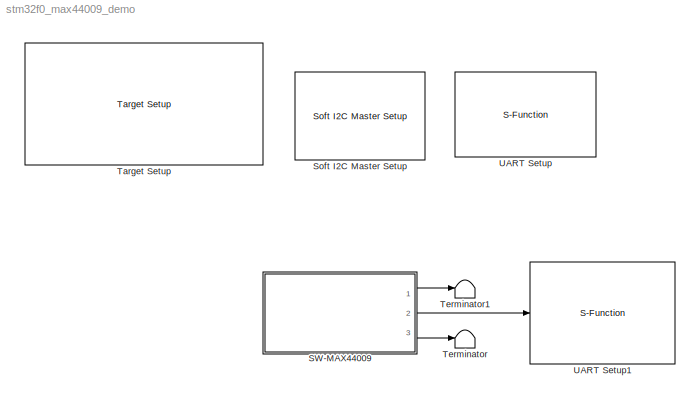
MODEL stm32f0_max44009_demo
KIND model
CONFIG PreLoadFcn = waijung.modelPreload; % Required for working with Waijung Blockset. Do not remove.
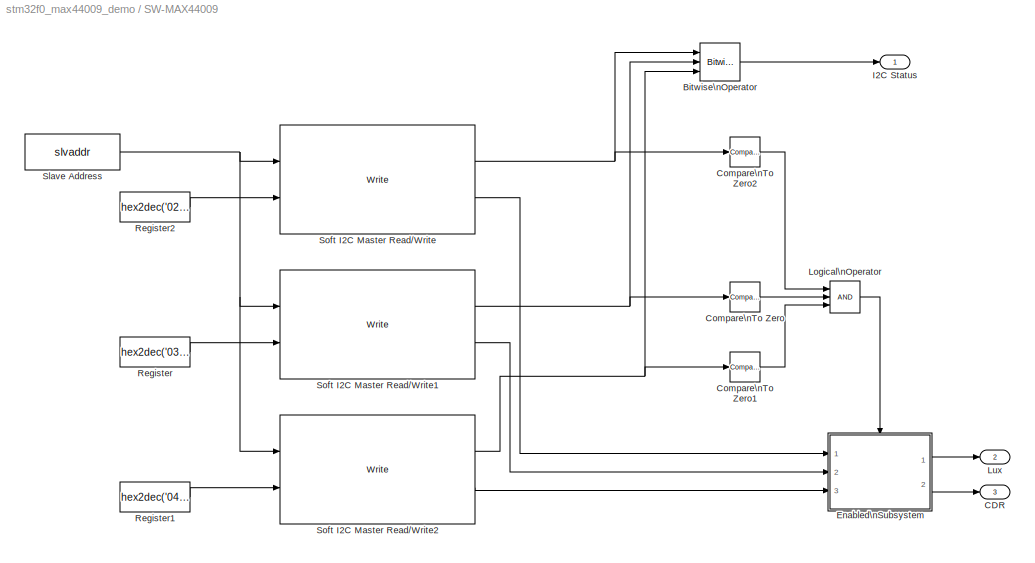
BLOCK [SubSystem] SW-MAX44009
  FunctionWithSeparateData = off
  MaskCallbackString = waijung_soft_i2c_sensors_callback('module');||||
  MaskDescription = aMG Sense - Light\n\nI2C Status:\n 0 - Success\n 1 - NAK\n 2 - Timeout\n 3 - Combined error, NAK+Timeout\n\nNote: Require I2C Setup block for the selected I2C module.
  MaskDisplay = text(0.5, 0.5, 'Soft-I2C\\naMG Sense - Light\\nMAX44009','ver','middle','hor','center');port_label('output', 1,'I2C Status');port_label('output', 2,'Lux');port_label('output', 3,'CDR');
  MaskEnableString = on,on,on,on,on
  MaskHideContents = off
  MaskIconFrame = on
  MaskIconOpaque = on
  MaskIconRotate = none
  MaskIconUnits = normalized
  MaskInitialization = waijung_soft_i2c_sensors_callback('init');
  MaskPortRotate = default
  MaskPromptString = I2C Module|I2C Slave Address|Output label|Sensor name|Sample time (sec)
  MaskSelfModifiable = on
  MaskStyleString = popup(1|2|3),edit,edit,edit,edit
  MaskTabNameString = ,,,,
  MaskToolTipString = on,on,on,on,on
  MaskTunableValueString = off,on,off,off,on
  MaskType = waijung_soft_i2c_sensors
  MaskValueString = 1|hex2dec('94')|{'I2C Status','Lux','CDR'}|Soft-I2C\\naMG Sense - Light\\nMAX44009|1
  MaskVarAliasString = ,,,,
  MaskVariables = module=&1;slvaddr=@2;outputlabel=&3;sensorname=&4;sampletime=@5;
  MaskVisibilityString = on,on,off,off,on
  MinAlgLoopOccurrences = off
  Opaque = off
  Ports = [0, 3]
  PropExecContextOutsideSubsystem = off
  RTWSystemCode = Auto
  RequestExecContextInheritance = off
BLOCK [Reference] SW-MAX44009/Bitwise\nOperator  REF=simulink/Logic and Bit\nOperations/Bitwise\nOperator
  BitMask = bin2dec('11011001')
  BitMaskRealWorld = Stored Integer
  NumInputPorts = 3
  Ports = [3, 1]
  SourceBlock = simulink/Logic and Bit\nOperations/Bitwise\nOperator
  SourceType = Bitwise Operator
  UseBitMask = off
  logicop = OR
BLOCK [Outport] SW-MAX44009/CDR
  IconDisplay = Port number
  OutDataType = fixdt(1, 16)
  OutScaling = 2^0
  Port = 3
BLOCK [Reference] SW-MAX44009/Compare\nTo Zero  REF=simulink/Logic and Bit\nOperations/Compare\nTo Zero
  FunctionWithSeparateData = off
  LogicOutDataTypeMode = uint8
  Ports = [1, 1]
  RTWMemSecDataConstants = Inherit from model
  RTWMemSecDataInternal = Inherit from model
  RTWMemSecDataParameters = Inherit from model
  RTWMemSecFuncExecute = Inherit from model
  RTWMemSecFuncInitTerm = Inherit from model
  ShowPortLabels = FromPortIcon
  SourceBlock = simulink/Logic and Bit\nOperations/Compare\nTo Zero
  SourceType = Compare To Zero
  SystemSampleTime = -1
  ZeroCross = off
  relop = ==
BLOCK [Reference] SW-MAX44009/Compare\nTo Zero1  REF=simulink/Logic and Bit\nOperations/Compare\nTo Zero
  FunctionWithSeparateData = off
  LogicOutDataTypeMode = uint8
  Ports = [1, 1]
  RTWMemSecDataConstants = Inherit from model
  RTWMemSecDataInternal = Inherit from model
  RTWMemSecDataParameters = Inherit from model
  RTWMemSecFuncExecute = Inherit from model
  RTWMemSecFuncInitTerm = Inherit from model
  ShowPortLabels = FromPortIcon
  SourceBlock = simulink/Logic and Bit\nOperations/Compare\nTo Zero
  SourceType = Compare To Zero
  SystemSampleTime = -1
  ZeroCross = off
  relop = ==
BLOCK [Reference] SW-MAX44009/Compare\nTo Zero2  REF=simulink/Logic and Bit\nOperations/Compare\nTo Zero
  FunctionWithSeparateData = off
  LogicOutDataTypeMode = uint8
  Ports = [1, 1]
  RTWMemSecDataConstants = Inherit from model
  RTWMemSecDataInternal = Inherit from model
  RTWMemSecDataParameters = Inherit from model
  RTWMemSecFuncExecute = Inherit from model
  RTWMemSecFuncInitTerm = Inherit from model
  ShowPortLabels = FromPortIcon
  SourceBlock = simulink/Logic and Bit\nOperations/Compare\nTo Zero
  SourceType = Compare To Zero
  SystemSampleTime = -1
  ZeroCross = off
  relop = ==
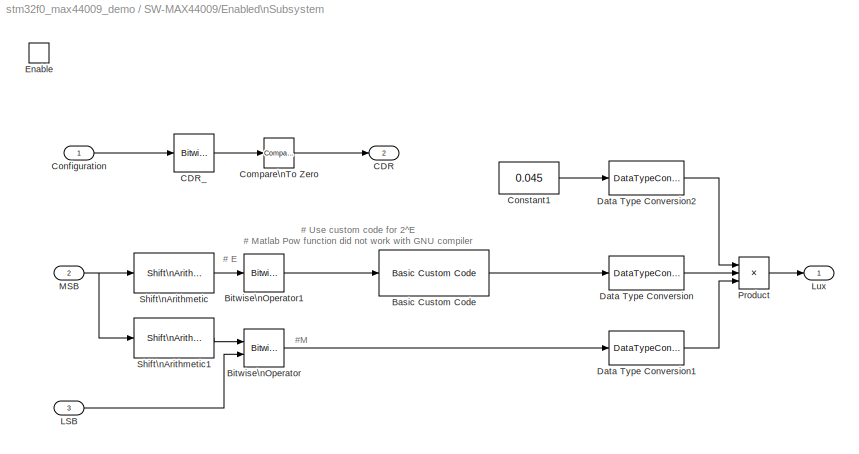
BLOCK [SubSystem] SW-MAX44009/Enabled\nSubsystem
  FunctionWithSeparateData = off
  MaskHideContents = off
  MinAlgLoopOccurrences = off
  Opaque = off
  Ports = [3, 2, 1]
  PropExecContextOutsideSubsystem = off
  RTWSystemCode = Auto
  RequestExecContextInheritance = off
  TreatAsAtomicUnit = on
BLOCK [Reference] SW-MAX44009/Enabled\nSubsystem/Basic Custom Code  REF=waijung_customcode/Basic Custom Code
  Ports = [1, 1]
  SourceBlock = waijung_customcode/Basic Custom Code
  SourceType = waijung_basic_customcode
  blockid = SWMAX44009EnabledSubsystemBasicCustomCode
  cinputportlabel = E
  cinputportlabelstr = [\"E\"]
  coutputportlabel = 2^E
  coutputportlabelstr = [\"2^E\"]
  enablecustomportlabel = on
  incfiles = {}
  incfilestrarray = []
  incpath = {}
  inputportcount = 1
  inputportdiminfo = [1  1  1  3]
  inputporttype = uint8
  inputporttypeid = [3]
  outputfuncallstr = {uint32_T result = 1; uint8_T i; for (i=0; i<in1; i++) { result *= 2; } *out1 = result;}
  outputportcount = 1
  outputportdiminfo = [1  1  1  7]
  outputporttype = uint32
  outputporttypeid = [7]
  sampletime = inf
  sampletimestr = 1
  srcfiles = {}
  srcpath = {}
BLOCK [Reference] SW-MAX44009/Enabled\nSubsystem/Bitwise\nOperator  REF=simulink/Logic and Bit\nOperations/Bitwise\nOperator
  BitMask = bin2dec('11011001')
  BitMaskRealWorld = Stored Integer
  NumInputPorts = 2
  Ports = [2, 1]
  SourceBlock = simulink/Logic and Bit\nOperations/Bitwise\nOperator
  SourceType = Bitwise Operator
  UseBitMask = off
  logicop = OR
BLOCK [Reference] SW-MAX44009/Enabled\nSubsystem/Bitwise\nOperator1  REF=simulink/Logic and Bit\nOperations/Bitwise\nOperator
  BitMask = hex2dec('F')
  BitMaskRealWorld = Stored Integer
  NumInputPorts = 1
  Ports = [1, 1]
  SourceBlock = simulink/Logic and Bit\nOperations/Bitwise\nOperator
  SourceType = Bitwise Operator
  UseBitMask = on
  logicop = AND
BLOCK [Outport] SW-MAX44009/Enabled\nSubsystem/CDR
  IconDisplay = Port number
  OutDataType = fixdt(1, 16)
  OutScaling = 2^0
  Port = 2
BLOCK [Reference] SW-MAX44009/Enabled\nSubsystem/CDR_  REF=simulink/Logic and Bit\nOperations/Bitwise\nOperator
  BitMask = 8
  BitMaskRealWorld = Stored Integer
  NumInputPorts = 1
  Ports = [1, 1]
  SourceBlock = simulink/Logic and Bit\nOperations/Bitwise\nOperator
  SourceType = Bitwise Operator
  UseBitMask = on
  logicop = AND
BLOCK [Reference] SW-MAX44009/Enabled\nSubsystem/Compare\nTo Zero  REF=simulink/Logic and Bit\nOperations/Compare\nTo Zero
  FunctionWithSeparateData = off
  LogicOutDataTypeMode = uint8
  Ports = [1, 1]
  RTWMemSecDataConstants = Inherit from model
  RTWMemSecDataInternal = Inherit from model
  RTWMemSecDataParameters = Inherit from model
  RTWMemSecFuncExecute = Inherit from model
  RTWMemSecFuncInitTerm = Inherit from model
  ShowPortLabels = FromPortIcon
  SourceBlock = simulink/Logic and Bit\nOperations/Compare\nTo Zero
  SourceType = Compare To Zero
  SystemSampleTime = -1
  ZeroCross = off
  relop = ~=
BLOCK [Inport] SW-MAX44009/Enabled\nSubsystem/Configuration
  IconDisplay = Port number
  OutDataType = fixdt(1, 16)
  OutScaling = 2^0
BLOCK [Constant] SW-MAX44009/Enabled\nSubsystem/Constant1
  OutDataType = fixdt(1, 16)
  OutScaling = 2^0
  Value = 0.045
BLOCK [DataTypeConversion] SW-MAX44009/Enabled\nSubsystem/Data Type Conversion
  OutDataType = fixdt(1, 16)
  OutDataTypeMode = single
  OutDataTypeStr = single
  OutScaling = 2^0
  RndMeth = Floor
  SaturateOnIntegerOverflow = off
BLOCK [DataTypeConversion] SW-MAX44009/Enabled\nSubsystem/Data Type Conversion1
  OutDataType = fixdt(1, 16)
  OutDataTypeMode = single
  OutDataTypeStr = single
  OutScaling = 2^0
  RndMeth = Floor
  SaturateOnIntegerOverflow = off
BLOCK [DataTypeConversion] SW-MAX44009/Enabled\nSubsystem/Data Type Conversion2
  OutDataType = fixdt(1, 16)
  OutDataTypeMode = single
  OutDataTypeStr = single
  OutScaling = 2^0
  RndMeth = Floor
  SaturateOnIntegerOverflow = off
BLOCK [EnablePort] SW-MAX44009/Enabled\nSubsystem/Enable
  Ports = []
BLOCK [Inport] SW-MAX44009/Enabled\nSubsystem/LSB
  IconDisplay = Port number
  OutDataType = fixdt(1, 16)
  OutScaling = 2^0
  Port = 3
BLOCK [Outport] SW-MAX44009/Enabled\nSubsystem/Lux
  IconDisplay = Port number
  OutDataType = fixdt(1, 16)
  OutScaling = 2^0
BLOCK [Inport] SW-MAX44009/Enabled\nSubsystem/MSB
  IconDisplay = Port number
  OutDataType = fixdt(1, 16)
  OutScaling = 2^0
  Port = 2
BLOCK [Product] SW-MAX44009/Enabled\nSubsystem/Product
  InputSameDT = off
  Inputs = 3
  OutDataType = fixdt(1, 16)
  OutScaling = 2^0
  Ports = [3, 1]
  SaturateOnIntegerOverflow = off
BLOCK [Reference] SW-MAX44009/Enabled\nSubsystem/Shift\nArithmetic  REF=simulink/Logic and Bit\nOperations/Shift\nArithmetic
  FunctionWithSeparateData = off
  Ports = [1, 1]
  RTWMemSecDataConstants = Inherit from model
  RTWMemSecDataInternal = Inherit from model
  RTWMemSecDataParameters = Inherit from model
  RTWMemSecFuncExecute = Inherit from model
  RTWMemSecFuncInitTerm = Inherit from model
  ShowPortLabels = FromPortIcon
  SourceBlock = simulink/Logic and Bit\nOperations/Shift\nArithmetic
  SourceType = Shift Arithmetic
  SystemSampleTime = -1
  nBinPtShiftRight = 0
  nBitShiftRight = 4
BLOCK [Reference] SW-MAX44009/Enabled\nSubsystem/Shift\nArithmetic1  REF=simulink/Logic and Bit\nOperations/Shift\nArithmetic
  FunctionWithSeparateData = off
  Ports = [1, 1]
  RTWMemSecDataConstants = Inherit from model
  RTWMemSecDataInternal = Inherit from model
  RTWMemSecDataParameters = Inherit from model
  RTWMemSecFuncExecute = Inherit from model
  RTWMemSecFuncInitTerm = Inherit from model
  ShowPortLabels = FromPortIcon
  SourceBlock = simulink/Logic and Bit\nOperations/Shift\nArithmetic
  SourceType = Shift Arithmetic
  SystemSampleTime = -1
  nBinPtShiftRight = 0
  nBitShiftRight = -4
BLOCK [Outport] SW-MAX44009/I2C Status
  IconDisplay = Port number
  OutDataType = fixdt(1, 16)
  OutScaling = 2^0
BLOCK [Logic] SW-MAX44009/Logical\nOperator
  AllPortsSameDT = off
  Inputs = 3
  LogicDataType = fixdt(0, 8)
  OutDataTypeMode = boolean
  OutDataTypeStr = boolean
  Ports = [3, 1]
BLOCK [Outport] SW-MAX44009/Lux
  IconDisplay = Port number
  OutDataType = fixdt(1, 16)
  OutScaling = 2^0
  Port = 2
BLOCK [Constant] SW-MAX44009/Register
  OutDataType = fixdt(1, 16)
  OutDataTypeMode = uint8
  OutDataTypeStr = uint8
  OutScaling = 2^0
  Value = hex2dec('03')
BLOCK [Constant] SW-MAX44009/Register1
  OutDataType = fixdt(1, 16)
  OutDataTypeMode = uint8
  OutDataTypeStr = uint8
  OutScaling = 2^0
  Value = hex2dec('04')
BLOCK [Constant] SW-MAX44009/Register2
  OutDataType = fixdt(1, 16)
  OutDataTypeMode = uint8
  OutDataTypeStr = uint8
  OutScaling = 2^0
  Value = hex2dec('02')
BLOCK [Constant] SW-MAX44009/Slave Address
  OutDataType = fixdt(1, 16)
  OutDataTypeMode = uint8
  OutDataTypeStr = uint8
  OutScaling = 2^0
  SampleTime = sampletime
  Value = slvaddr
BLOCK [Reference] SW-MAX44009/Soft I2C Master Read//Write  REF=waijung_soft_i2c_lib/Soft I2C Master Read//Write
  Ports = [2, 2]
  SourceBlock = waijung_soft_i2c_lib/Soft I2C Master Read//Write
  SourceType = waijung_soft_i2c
  blockid = SWMAX44009SoftI2CMasterReadWrite
  clk = 100
  compat = 0
  conf = ReadWrite
  forcestop = off
  inputportlabel = {'SlvAddr' 'Wr0 (uint8)'}
  inputporttype = [3 3]
  inputportwidth = []
  module = 1
  optionstring = [\"1\",\"1\",\"1\",\"0\",\"off\",\"1\"]
  outputportlabel = {'Status' 'Rd0 (uint8)'}
  outputporttype = [3 3 ]
  outputportwidth = [1 1]
  portpinstr = 0
  readcount = 1
  sampletime = inf
  sclpins = 'A5'
  sdapins = {'A4','A6'}
  targetname = stm32f0
  timeout = 25
  transfer = Blocking
  waittime = 0
  writecount = 1
BLOCK [Reference] SW-MAX44009/Soft I2C Master Read//Write1  REF=waijung_soft_i2c_lib/Soft I2C Master Read//Write
  Ports = [2, 2]
  SourceBlock = waijung_soft_i2c_lib/Soft I2C Master Read//Write
  SourceType = waijung_soft_i2c
  blockid = SWMAX44009SoftI2CMasterReadWrite1
  clk = 100
  compat = 0
  conf = ReadWrite
  forcestop = off
  inputportlabel = {'SlvAddr' 'Wr0 (uint8)'}
  inputporttype = [3 3]
  inputportwidth = []
  module = 1
  optionstring = [\"1\",\"1\",\"1\",\"0\",\"off\",\"1\"]
  outputportlabel = {'Status' 'Rd0 (uint8)'}
  outputporttype = [3 3 ]
  outputportwidth = [1 1]
  portpinstr = 0
  readcount = 1
  sampletime = inf
  sclpins = 'A5'
  sdapins = {'A4','A6'}
  targetname = stm32f0
  timeout = 25
  transfer = Blocking
  waittime = 0
  writecount = 1
BLOCK [Reference] SW-MAX44009/Soft I2C Master Read//Write2  REF=waijung_soft_i2c_lib/Soft I2C Master Read//Write
  Ports = [2, 2]
  SourceBlock = waijung_soft_i2c_lib/Soft I2C Master Read//Write
  SourceType = waijung_soft_i2c
  blockid = SWMAX44009SoftI2CMasterReadWrite2
  clk = 100
  compat = 0
  conf = ReadWrite
  forcestop = off
  inputportlabel = {'SlvAddr' 'Wr0 (uint8)'}
  inputporttype = [3 3]
  inputportwidth = []
  module = 1
  optionstring = [\"1\",\"1\",\"1\",\"0\",\"off\",\"1\"]
  outputportlabel = {'Status' 'Rd0 (uint8)'}
  outputporttype = [3 3 ]
  outputportwidth = [1 1]
  portpinstr = 0
  readcount = 1
  sampletime = inf
  sclpins = 'A5'
  sdapins = {'A4','A6'}
  targetname = stm32f0
  timeout = 25
  transfer = Blocking
  waittime = 0
  writecount = 1
BLOCK [Reference] Soft I2C Master Setup  REF=waijung_soft_i2c_lib/Soft I2C Master Setup
  Ports = []
  SourceBlock = waijung_soft_i2c_lib/Soft I2C Master Setup
  SourceType = waijung_soft_i2c
  blockid = SoftI2CMasterSetup
  clk = 100
  compat = 0
  conf = Setup
  forcestop = off
  inputportlabel = {}
  inputporttype = []
  inputportwidth = []
  module = 1
  optionstring = [\"1\",\"100000\",\"9\",\"5\",\"4\",\"2\",\"25\",\"\",\"\",\"\",\"0\",\"1\",\"0\",\"0\",\"0\",\"0\",\"0\",\"0\",\"0\",\"\",\"1\",\"B\",\"7\",\"B\",\"6\"]
  outputportlabel = {}
  outputporttype = []
  outputportwidth = []
  portpinstr = 0
  readcount = 1
  sampletime = -1
  sclpins = 'B6'
  sdapins = 'B7'
  targetname = stm32f0
  timeout = 25
  transfer = Blocking
  waittime = 0
  writecount = 1
BLOCK [Reference] Target Setup  REF=stm32f0_device_config_lib/Target Setup
  Ports = []
  Priority = 100
  SourceBlock = stm32f0_device_config_lib/Target Setup
  SourceType = stm32f0_target_setup
  assemblercontrolstr = $(patsubst %, -I%, .) -mcpu=cortex-m0 -mtune=cortex-m0 -mthumb -Wall -O3 -Wa,-amhls=$(<:.s=.lst) -D__STACK_SIZE=$(STACK_SIZE) -D__HEAP_SIZE=$(HEAP_SIZE)
  blockid = TargetSetup
  clockconfig = STM32F072B-DISCO Default (HSIOSC-8MHz/HCLK-48MHz)
  compiler = GNU ARM
  compilercontrolstr = $(patsubst %, -I%, .) -mcpu=cortex-m0 -mthumb -mabi=aapcs -Wall -O3 -mfloat-abi=soft -ffunction-sections -fdata-sections -fno-strict-aliasing -fno-builtin --short-enums
  editctrlstr = on
  enableautocompiledownload = on
  execprofile = None
  flashlength = 128k
  flashorigin = 0x8000000
  fullchiperase = off
  hclk = 48000000
  heapsize = 0x200
  hseval = 8000000
  lastprofileruart = 3
  linkercontrolstr = -T$(LD_SCRIPT) -Wl,-Map=$(MAP),--cref,--no-warn-mismatch -mcpu=cortex-m0 -mthumb  -Wall -O3 -mabi=aapcs -lc -specs=nosys.specs
  manualsetsampletime = off
  mcu = STM32F072CB (LQFP48)
  mcustr = STM32F072CB
  previous_compiler = GNU ARM
  profilerbaud = 500000
  profilerinitstr = 0.1,48000000,4800000,500000,0
  profilertxpin = Not used
  profileruart = 3
  programmerinterface = aMG USB Connect
  ramlength = 16k
  ramorigin = 0x20000000
  runafterdownload = on
  sampletime = 0.1
  showmemoryconfiguration = off
  stacksize = 0x200
  stdlib = STM32F072
  system_stm32f0xx_c_path = <path>
  systickreloadvalue = 4800000
  useextram = off
BLOCK [Terminator] Terminator
BLOCK [Terminator] Terminator1
BLOCK [S-Function] UART Setup
  EnableBusSupport = off
  FunctionName = stm32f0_uart
  MaskCallbackString = stm32f0_uart_callback('conf');|stm32f0_uart_callback('uartmodule');|||||||stm32f0_uart_callback('flowcontrol');|||stm32f0_uart_callback('advanceoptions');|||stm32f0_uart_callback('conf');|stm32f0_uart_callback('conf');|stm32f0_uart_callback('binheader');|stm32f0_uart_callback('binterminator');|||||||||stm32f0_uart_callback('asciiformat');|||stm32f0_uart_callback('storagename');|||stm32f0_uart_call...<+176ch>
  MaskDisplay = text(0.5, 0.5, 'Module: USART1_Setup\\nBaud (Bps): 115200\\nDMA Buffer: 64/64\\nTx/Rx Pin: A9/A10','ver','middle','hor','center');
  MaskEnableString = on,on,on,on,on,on,on,on,on,off,off,on,on,on,on,on,on,on,on,on,on,on,on,on,on,on,on,on,on,on,on,on,on,on,on,on,on,off,on,on,on,on,on,on,on,on,on,on,on,on
  MaskHelp = web(fullfile(waijungdocroot,'stm32f0_uart.htm'), '-browser')
  MaskIconFrame = on
  MaskIconOpaque = on
  MaskIconRotate = none
  MaskIconUnits = normalized
  MaskInitialization = stm32f0_uart_callback('init');
  MaskPortRotate = default
  MaskPromptString = Configuration|UART Module|Baud rate (bps)|Data bits|Parity|Stop bit|Tx pin|Rx pin|Hardware flow control|HW Flow control, CTS Pin|HW Flow control, RTS Pin|Advance options|Rx buffer size (bytes)|Tx buffer size (bytes)|Transfer|Packet mode|Binary header (example: '7E 7E')|Binary terminator (example: '03 03')|Number of data port, type DOUBLE|Number of data port, type SINGLE|Number of data port, type I...<+631ch>
  MaskSelfModifiable = on
  MaskStyleString = popup(Setup|Tx|Rx),popup(1|2|3|4),edit,popup(8),popup(No|Odd|Even),popup(0.5|1|1.5|2),popup(Not used|A9|B6),popup(Not used|A10|B7),popup(None|RTS|CTS|RTS/CTS),popup(Not used|A11),popup(Not used|A12),checkbox,popup(16|32|64|128|256|512),popup(16|32|64|128|256|512),popup(Blocking|Non-Blocking),popup(Ascii|Binary|String Buffer),edit,edit,edit,edit,edit,edit,edit,edit,edit,edit,edit,popup(CR (0x0D - \...<+259ch>
  MaskTabNameString = ,,,,,,,,,,,,,,,,,,,,,,,,,,,,,,,,,,,,,,,,,,,,,,,,,
  MaskToolTipString = on,on,on,on,on,on,on,on,on,on,on,on,on,on,on,on,on,on,on,on,on,on,on,on,on,on,on,on,on,on,on,on,on,on,on,on,on,on,on,on,on,on,on,on,on,on,on,on,on,on
  MaskTunableValueString = off,off,off,off,off,off,off,off,off,off,off,off,off,off,off,off,off,off,off,off,off,off,off,off,off,off,off,off,off,off,off,off,off,off,off,off,off,off,off,off,off,off,off,off,off,off,off,off,off,off
  MaskType = stm32f0_uart
  MaskValueString = Setup|1|115200|8|No|1|A9|A10|None|Not used|Not used|off|64|64|Non-Blocking|Binary|'7E 7E'|'03 03'|1|1|0|0|0|1|0|0|'%1.2f'|CR (0x0D - \"\\r\")|CR (0x0D - \"\\r\")|<empty>|||-1|off|de|fff,ff,sdfsd|0|UARTSetup|[]|[]|{}|[]|[]|{}|0|[\"1\", \"1\", \"A\", \"9\", \"1\", \"A\", \"10\", \"0\", \"*\", \"*\", \"0\", \"*\", \"*\", \"1\", \"1\", \"\", \"\", \"115200\", \"8\", \"No\", \"1\", \"None\", \"3\", \"2...<+66ch>
  MaskVarAliasString = ,,,,,,,,,,,,,,,,,,,,,,,,,,,,,,,,,,,,,,,,,,,,,,,,,
  MaskVariables = conf=&1;uartmodule=&2;baudrate=@3;databits=@4;parity=&5;stopbit=&6;remaptxpin=&7;remaprxpin=&8;flowcontrol=&9;remapctspin=&10;remaprtspin=&11;advanceoptions=@12;rxbuffersize=@13;txbuffersize=@14;transfer=&15;packetmode=&16;binheader=&17;binterminator=&18;porttype_double=@19;porttype_single=@20;porttype_int8=@21;porttype_uint8=@22;porttype_int16=@23;porttype_uint16=@24;porttype_int32=@25;porttype_u...<+445ch>
  MaskVisibilityString = off,on,on,on,on,on,on,on,on,on,on,on,off,off,off,off,off,off,off,off,off,off,off,off,off,off,off,off,off,off,off,off,off,off,off,off,off,off,off,off,off,off,off,off,off,off,off,off,off,off
  Parameters = conf,inputporttype,inputportwidth,outputporttype,outputportwidth,asciiheader,optionstring,headerstring,terminatorstring,asciidatatypestring,sampletime,blockid
  Ports = []
BLOCK [S-Function] UART Setup1
  EnableBusSupport = off
  FunctionName = stm32f0_uart
  MaskCallbackString = stm32f0_uart_callback('conf');|stm32f0_uart_callback('uartmodule');|||||||stm32f0_uart_callback('flowcontrol');|||stm32f0_uart_callback('advanceoptions');|||stm32f0_uart_callback('conf');|stm32f0_uart_callback('conf');|stm32f0_uart_callback('binheader');|stm32f0_uart_callback('binterminator');|||||||||stm32f0_uart_callback('asciiformat');|||stm32f0_uart_callback('storagename');|||stm32f0_uart_call...<+176ch>
  MaskDisplay = text(0.95, 0.5, 'Module: USART1_Tx\\nPacket: Ascii\\nTransfer: Non-Blocking\\nTs (sec): 1','ver','middle','hor','right'); port_label('input', 1,'%f');
  MaskEnableString = on,on,on,on,on,on,on,on,on,off,off,on,on,on,on,on,on,on,on,on,on,on,on,on,on,on,on,on,on,on,on,on,on,on,on,on,on,off,on,on,on,on,on,on,on,on,on,on,on,on
  MaskHelp = web(fullfile(waijungdocroot,'stm32f0_uart.htm'), '-browser')
  MaskIconFrame = on
  MaskIconOpaque = on
  MaskIconRotate = none
  MaskIconUnits = normalized
  MaskInitialization = stm32f0_uart_callback('init');
  MaskPortRotate = default
  MaskPromptString = Configuration|UART Module|Baud rate (bps)|Data bits|Parity|Stop bit|Tx pin|Rx pin|Hardware flow control|HW Flow control, CTS Pin|HW Flow control, RTS Pin|Advance options|Rx buffer size (bytes)|Tx buffer size (bytes)|Transfer|Packet mode|Binary header (example: '7E 7E')|Binary terminator (example: '03 03')|Number of data port, type DOUBLE|Number of data port, type SINGLE|Number of data port, type I...<+631ch>
  MaskSelfModifiable = on
  MaskStyleString = popup(Setup|Tx|Rx),popup(1|2|3|4),edit,popup(8),popup(No|Odd|Even),popup(0.5|1|1.5|2),popup(Not used|A9|B6),popup(Not used|A10|B7),popup(None|RTS|CTS|RTS/CTS),popup(Not used|A11),popup(Not used|A12),checkbox,popup(16|32|64|128|256|512),popup(16|32|64|128|256|512),popup(Blocking|Non-Blocking),popup(Ascii|Binary|String Buffer),edit,edit,edit,edit,edit,edit,edit,edit,edit,edit,edit,popup(CR (0x0D - \...<+259ch>
  MaskTabNameString = ,,,,,,,,,,,,,,,,,,,,,,,,,,,,,,,,,,,,,,,,,,,,,,,,,
  MaskToolTipString = on,on,on,on,on,on,on,on,on,on,on,on,on,on,on,on,on,on,on,on,on,on,on,on,on,on,on,on,on,on,on,on,on,on,on,on,on,on,on,on,on,on,on,on,on,on,on,on,on,on
  MaskTunableValueString = off,off,off,off,off,off,off,off,off,off,off,off,off,off,off,off,off,off,off,off,off,off,off,off,off,off,off,off,off,off,off,off,off,off,off,off,off,off,off,off,off,off,off,off,off,off,off,off,off,off
  MaskType = stm32f0_uart
  MaskValueString = Tx|1|115200|8|No|1|A9|A10|None|Not used|Not used|off|64|64|Non-Blocking|Ascii|'7E 7E'|'03 03'|1|1|0|0|0|1|0|0|'Lux=%1.2f'|CR (0x0D - \"\\r\")|CR (0x0D - \"\\r\")|<empty>||Lux=%1.2f\\r|inf|off|de|fff,ff,sdfsd|0|UARTSetup1|[ -1]|[]|{ '%f'}|[]|[]|{}|0|[\"1\", \"1\", \"A\", \"9\", \"1\", \"A\", \"10\", \"0\", \"*\", \"*\", \"0\", \"*\", \"*\", \"1\", \"1\", \"\", \"\", \"115200\", \"8\", \"No\", \"1\"...<+102ch>
  MaskVarAliasString = ,,,,,,,,,,,,,,,,,,,,,,,,,,,,,,,,,,,,,,,,,,,,,,,,,
  MaskVariables = conf=&1;uartmodule=&2;baudrate=@3;databits=@4;parity=&5;stopbit=&6;remaptxpin=&7;remaprxpin=&8;flowcontrol=&9;remapctspin=&10;remaprtspin=&11;advanceoptions=@12;rxbuffersize=@13;txbuffersize=@14;transfer=&15;packetmode=&16;binheader=&17;binterminator=&18;porttype_double=@19;porttype_single=@20;porttype_int8=@21;porttype_uint8=@22;porttype_int16=@23;porttype_uint16=@24;porttype_int32=@25;porttype_u...<+445ch>
  MaskVisibilityString = off,on,off,off,off,off,off,off,off,off,off,off,off,off,on,on,off,off,off,off,off,off,off,off,off,off,on,off,on,off,off,off,on,on,off,off,off,off,off,off,off,off,off,off,off,off,off,off,off,off
  Parameters = conf,inputporttype,inputportwidth,outputporttype,outputportwidth,asciiheader,optionstring,headerstring,terminatorstring,asciidatatypestring,sampletime,blockid
  Ports = [1]
ANNOTATION SW-MAX44009/Enabled\nSubsystem: # E
ANNOTATION SW-MAX44009/Enabled\nSubsystem: # Use custom code for 2^E\n# Matlab Pow function did not work with GNU compiler
ANNOTATION SW-MAX44009/Enabled\nSubsystem: #M
LINE SW-MAX44009/Bitwise\nOperator:1 -> SW-MAX44009/I2C Status:1
LINE SW-MAX44009/Compare\nTo Zero1:1 -> SW-MAX44009/Logical\nOperator:3
LINE SW-MAX44009/Compare\nTo Zero2:1 -> SW-MAX44009/Logical\nOperator:1
LINE SW-MAX44009/Compare\nTo Zero:1 -> SW-MAX44009/Logical\nOperator:2
LINE SW-MAX44009/Enabled\nSubsystem/Basic Custom Code:1 -> SW-MAX44009/Enabled\nSubsystem/Data Type Conversion:1
LINE SW-MAX44009/Enabled\nSubsystem/Bitwise\nOperator1:1 -> SW-MAX44009/Enabled\nSubsystem/Basic Custom Code:1
LINE SW-MAX44009/Enabled\nSubsystem/Bitwise\nOperator:1 -> SW-MAX44009/Enabled\nSubsystem/Data Type Conversion1:1
LINE SW-MAX44009/Enabled\nSubsystem/CDR_:1 -> SW-MAX44009/Enabled\nSubsystem/Compare\nTo Zero:1
LINE SW-MAX44009/Enabled\nSubsystem/Compare\nTo Zero:1 -> SW-MAX44009/Enabled\nSubsystem/CDR:1
LINE SW-MAX44009/Enabled\nSubsystem/Configuration:1 -> SW-MAX44009/Enabled\nSubsystem/CDR_:1
LINE SW-MAX44009/Enabled\nSubsystem/Constant1:1 -> SW-MAX44009/Enabled\nSubsystem/Data Type Conversion2:1
LINE SW-MAX44009/Enabled\nSubsystem/Data Type Conversion1:1 -> SW-MAX44009/Enabled\nSubsystem/Product:3
LINE SW-MAX44009/Enabled\nSubsystem/Data Type Conversion2:1 -> SW-MAX44009/Enabled\nSubsystem/Product:1
LINE SW-MAX44009/Enabled\nSubsystem/Data Type Conversion:1 -> SW-MAX44009/Enabled\nSubsystem/Product:2
LINE SW-MAX44009/Enabled\nSubsystem/LSB:1 -> SW-MAX44009/Enabled\nSubsystem/Bitwise\nOperator:2
NET SW-MAX44009/Enabled\nSubsystem/MSB:1 -> SW-MAX44009/Enabled\nSubsystem/Shift\nArithmetic1:1, SW-MAX44009/Enabled\nSubsystem/Shift\nArithmetic:1
LINE SW-MAX44009/Enabled\nSubsystem/Product:1 -> SW-MAX44009/Enabled\nSubsystem/Lux:1
LINE SW-MAX44009/Enabled\nSubsystem/Shift\nArithmetic1:1 -> SW-MAX44009/Enabled\nSubsystem/Bitwise\nOperator:1
LINE SW-MAX44009/Enabled\nSubsystem/Shift\nArithmetic:1 -> SW-MAX44009/Enabled\nSubsystem/Bitwise\nOperator1:1
LINE SW-MAX44009/Enabled\nSubsystem:1 -> SW-MAX44009/Lux:1
LINE SW-MAX44009/Enabled\nSubsystem:2 -> SW-MAX44009/CDR:1
LINE SW-MAX44009/Logical\nOperator:1 -> SW-MAX44009/Enabled\nSubsystem:enable
LINE SW-MAX44009/Register1:1 -> SW-MAX44009/Soft I2C Master Read//Write2:2
LINE SW-MAX44009/Register2:1 -> SW-MAX44009/Soft I2C Master Read//Write:2
LINE SW-MAX44009/Register:1 -> SW-MAX44009/Soft I2C Master Read//Write1:2
NET SW-MAX44009/Slave Address:1 -> SW-MAX44009/Soft I2C Master Read//Write1:1, SW-MAX44009/Soft I2C Master Read//Write2:1, SW-MAX44009/Soft I2C Master Read//Write:1
NET SW-MAX44009/Soft I2C Master Read//Write1:1 -> SW-MAX44009/Bitwise\nOperator:2, SW-MAX44009/Compare\nTo Zero:1
LINE SW-MAX44009/Soft I2C Master Read//Write1:2 -> SW-MAX44009/Enabled\nSubsystem:2
NET SW-MAX44009/Soft I2C Master Read//Write2:1 -> SW-MAX44009/Bitwise\nOperator:3, SW-MAX44009/Compare\nTo Zero1:1
LINE SW-MAX44009/Soft I2C Master Read//Write2:2 -> SW-MAX44009/Enabled\nSubsystem:3
NET SW-MAX44009/Soft I2C Master Read//Write:1 -> SW-MAX44009/Bitwise\nOperator:1, SW-MAX44009/Compare\nTo Zero2:1
LINE SW-MAX44009/Soft I2C Master Read//Write:2 -> SW-MAX44009/Enabled\nSubsystem:1
LINE SW-MAX44009:1 -> Terminator1:1
LINE SW-MAX44009:2 -> UART Setup1:1
LINE SW-MAX44009:3 -> Terminator:1
note: NET lines group one-source signal fan-out (src -> all destinations, sorted); 1:1 wires keep LINE
note: 1 file-system path scrubbed to <path> (not preserved elsewhere — flat text is the only slx artifact)
